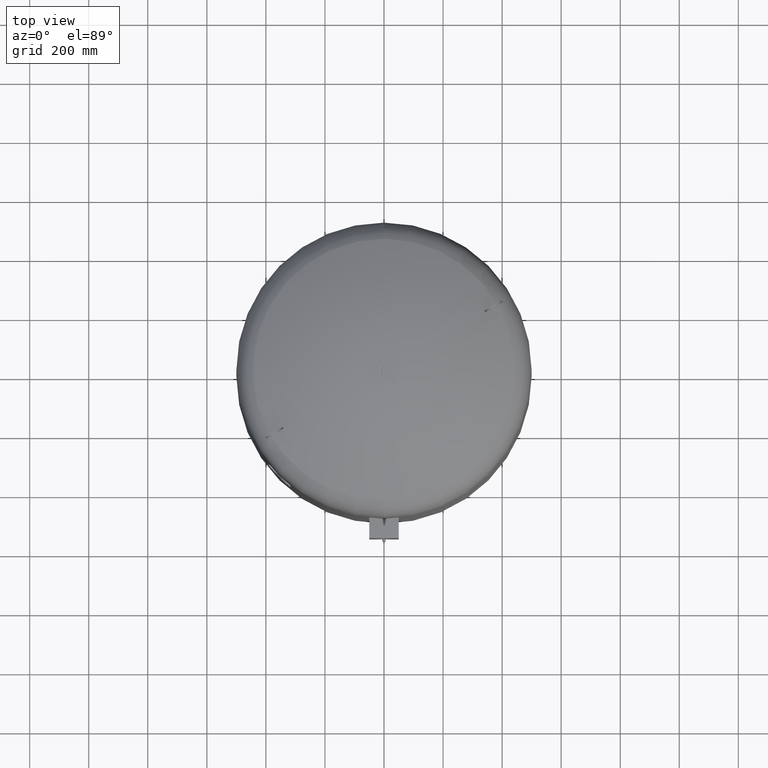
[diagram: clean part render]
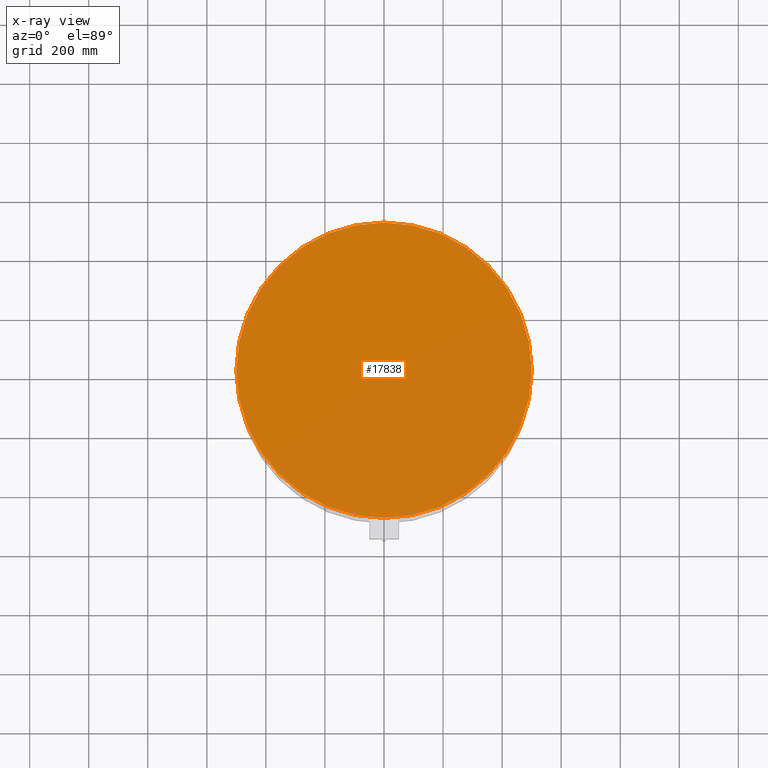
[diagram: x-ray — body ghosted, one internal face saturated and labeled with its STEP entity id]
A machine part, top view, then the same camera in x-ray: the body is ghosted and one INTERNAL B-rep face — a face not visible from any outside direction — is saturated and labeled: STEP entity #17838.
In plain terms, the highlighted planar face has unit normal (0, 0, -1).
Its self-contained STEP definition (entity closure, byte-faithful):
#17105=CARTESIAN_POINT('',(500.0,-3.995410E-014,1751.500000000000000));
#17106=VERTEX_POINT('',#17105);
#17115=CARTESIAN_POINT('',(-500.0,2.127622E-014,1751.500000000000000));
#17116=VERTEX_POINT('',#17115);
#17117=CARTESIAN_POINT('',(2.541624E-015,-3.995410E-014,1751.500000000000000));
#17118=DIRECTION('',(0.0,0.0,-1.0));
#17119=DIRECTION('',(1.0,0.0,0.0));
#17120=AXIS2_PLACEMENT_3D('',#17117,#17118,#17119);
#17121=CIRCLE('',#17120,500.0);
#17122=EDGE_CURVE('',#17116,#17106,#17121,.T.);
#17819=CARTESIAN_POINT('',(2.541624E-015,-3.995410E-014,1751.500000000000000));
#17820=DIRECTION('',(0.0,0.0,-1.0));
#17821=DIRECTION('',(1.0,0.0,0.0));
#17822=AXIS2_PLACEMENT_3D('',#17819,#17820,#17821);
#17823=CIRCLE('',#17822,500.0);
#17824=EDGE_CURVE('',#17106,#17116,#17823,.T.);
#17829=CARTESIAN_POINT('',(249.999999999999970,-3.995410E-014,1751.500000000000000));
#17830=DIRECTION('',(0.0,0.0,-1.0));
#17831=DIRECTION('',(0.0,-1.0,0.0));
#17832=AXIS2_PLACEMENT_3D('',#17829,#17830,#17831);
#17833=PLANE('',#17832);
#17834=ORIENTED_EDGE('',*,*,#17824,.T.);
#17835=ORIENTED_EDGE('',*,*,#17122,.T.);
#17836=EDGE_LOOP('',(#17834,#17835));
#17837=FACE_OUTER_BOUND('',#17836,.T.);
#17838=ADVANCED_FACE('',(#17837),#17833,.T.);